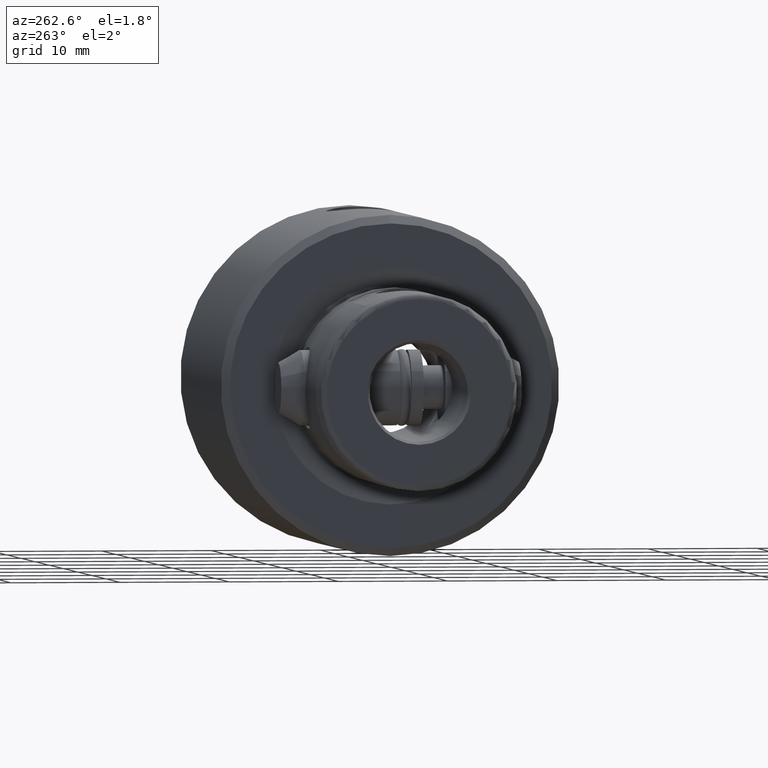
[diagram: clean part render]
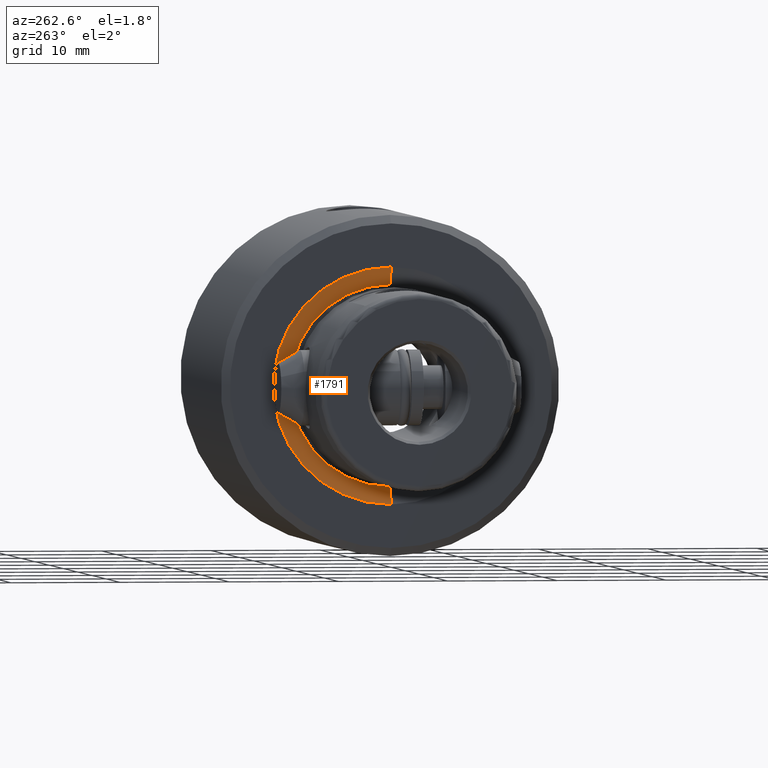
[diagram: same view with one face highlighted and labeled with its STEP entity id]
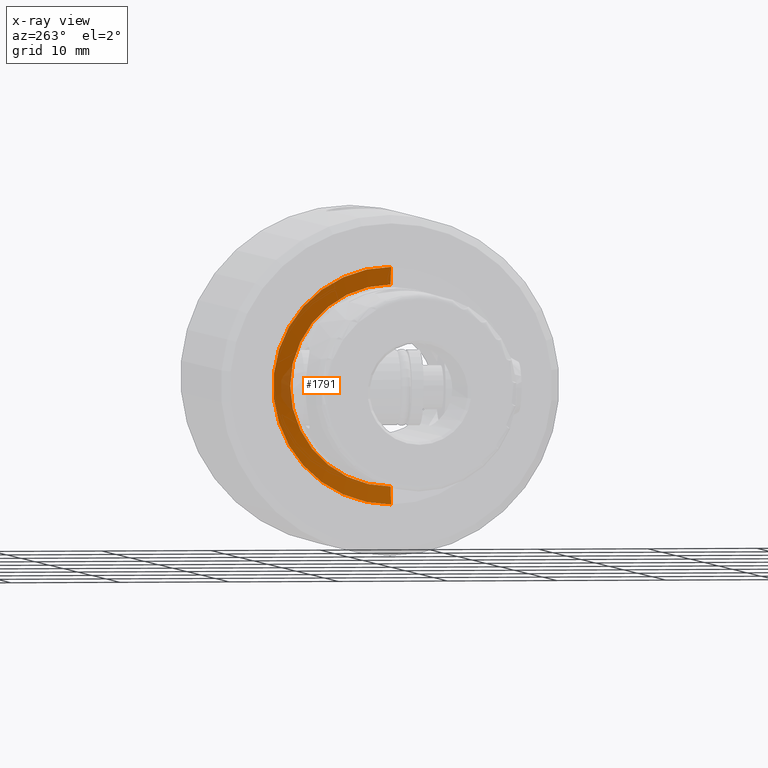
[diagram: x-ray of the same camera — body ghosted, the highlighted face saturated]
A machine part, auxiliary view. The second image highlights one B-rep face of the part: STEP entity #1791.
The next image is the same camera in x-ray: the body ghosted, the highlighted face saturated — about 6% of this face is hidden behind the body in this view.
In plain terms, the highlighted conical surface has half-angle 75 deg.
Its self-contained STEP definition (entity closure, byte-faithful):
#57 = CARTESIAN_POINT ( 'NONE',  ( -10.79524911219973000, 1.322036727125370600E-015, 30.00000000000000000 ) ) ;
#178 = ORIENTED_EDGE ( 'NONE', *, *, #1412, .T. ) ;
#452 = EDGE_CURVE ( 'NONE', #3403, #1566, #2178, .T. ) ;
#550 = VECTOR ( 'NONE', #1930, 999.9999999999998900 ) ;
#579 = CARTESIAN_POINT ( 'NONE',  ( -9.179409522551257100, 1.124153448985512900E-015, 29.56703708685546400 ) ) ;
#583 = CARTESIAN_POINT ( 'NONE',  ( 0.0000000000000000000, 0.0000000000000000000, 29.56703708685546400 ) ) ;
#643 = DIRECTION ( 'NONE',  ( 0.0000000000000000000, 0.0000000000000000000, -1.000000000000000000 ) ) ;
#648 = CARTESIAN_POINT ( 'NONE',  ( 9.179409522551257100, 0.0000000000000000000, 29.56703708685546400 ) ) ;
#838 = ORIENTED_EDGE ( 'NONE', *, *, #2186, .F. ) ;
#885 = EDGE_CURVE ( 'NONE', #1661, #3127, #4199, .T. ) ;
#1341 = DIRECTION ( 'NONE',  ( 1.000000000000000000, 0.0000000000000000000, 0.0000000000000000000 ) ) ;
#1386 = FACE_OUTER_BOUND ( 'NONE', #4248, .T. ) ;
#1412 = EDGE_CURVE ( 'NONE', #3127, #3403, #2013, .T. ) ;
#1480 = ORIENTED_EDGE ( 'NONE', *, *, #885, .T. ) ;
#1566 = VERTEX_POINT ( 'NONE', #57 ) ;
#1661 = VERTEX_POINT ( 'NONE', #3464 ) ;
#1671 = AXIS2_PLACEMENT_3D ( 'NONE', #3999, #3313, #1341 ) ;
#1761 = CONICAL_SURFACE ( 'NONE', #2287, 9.179409522551257100, 1.308996938995753400 ) ;
#1791 = ADVANCED_FACE ( 'NONE', ( #1386 ), #1761, .F. ) ;
#1902 = LINE ( 'NONE', #579, #550 ) ;
#1930 = DIRECTION ( 'NONE',  ( -0.9659258262890699800, 1.182917971378672100E-016, 0.2588190451025147400 ) ) ;
#1954 = ORIENTED_EDGE ( 'NONE', *, *, #452, .T. ) ;
#2013 = LINE ( 'NONE', #648, #3232 ) ;
#2178 = CIRCLE ( 'NONE', #1671, 10.79524911219972900 ) ;
#2186 = EDGE_CURVE ( 'NONE', #1661, #1566, #1902, .T. ) ;
#2256 = DIRECTION ( 'NONE',  ( 0.9659258262890699800, 0.0000000000000000000, 0.2588190451025147400 ) ) ;
#2287 = AXIS2_PLACEMENT_3D ( 'NONE', #583, #2572, #3538 ) ;
#2299 = CARTESIAN_POINT ( 'NONE',  ( 10.79524911219973000, 0.0000000000000000000, 30.00000000000000000 ) ) ;
#2309 = CARTESIAN_POINT ( 'NONE',  ( 9.179409522551257100, 0.0000000000000000000, 29.56703708685546400 ) ) ;
#2572 = DIRECTION ( 'NONE',  ( 0.0000000000000000000, 0.0000000000000000000, 1.000000000000000000 ) ) ;
#2656 = CARTESIAN_POINT ( 'NONE',  ( 0.0000000000000000000, 0.0000000000000000000, 29.56703708685546400 ) ) ;
#3127 = VERTEX_POINT ( 'NONE', #2309 ) ;
#3224 = AXIS2_PLACEMENT_3D ( 'NONE', #2656, #643, #4251 ) ;
#3232 = VECTOR ( 'NONE', #2256, 999.9999999999998900 ) ;
#3313 = DIRECTION ( 'NONE',  ( 0.0000000000000000000, 0.0000000000000000000, 1.000000000000000000 ) ) ;
#3403 = VERTEX_POINT ( 'NONE', #2299 ) ;
#3464 = CARTESIAN_POINT ( 'NONE',  ( -9.179409522551257100, 1.223095088055441700E-015, 29.56703708685546400 ) ) ;
#3538 = DIRECTION ( 'NONE',  ( 1.000000000000000000, 0.0000000000000000000, 0.0000000000000000000 ) ) ;
#3999 = CARTESIAN_POINT ( 'NONE',  ( 0.0000000000000000000, 0.0000000000000000000, 30.00000000000000000 ) ) ;
#4199 = CIRCLE ( 'NONE', #3224, 9.179409522551257100 ) ;
#4248 = EDGE_LOOP ( 'NONE', ( #838, #1480, #178, #1954 ) ) ;
#4251 = DIRECTION ( 'NONE',  ( -1.000000000000000000, 0.0000000000000000000, 0.0000000000000000000 ) ) ;